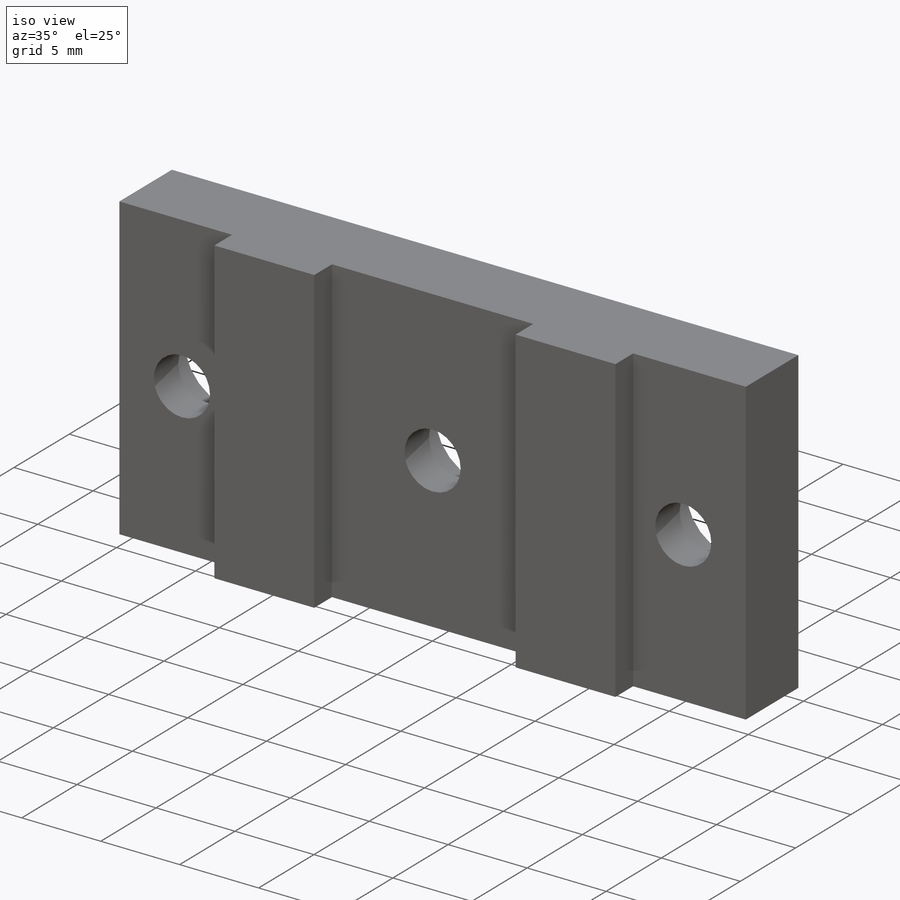
[diagram: iso view]
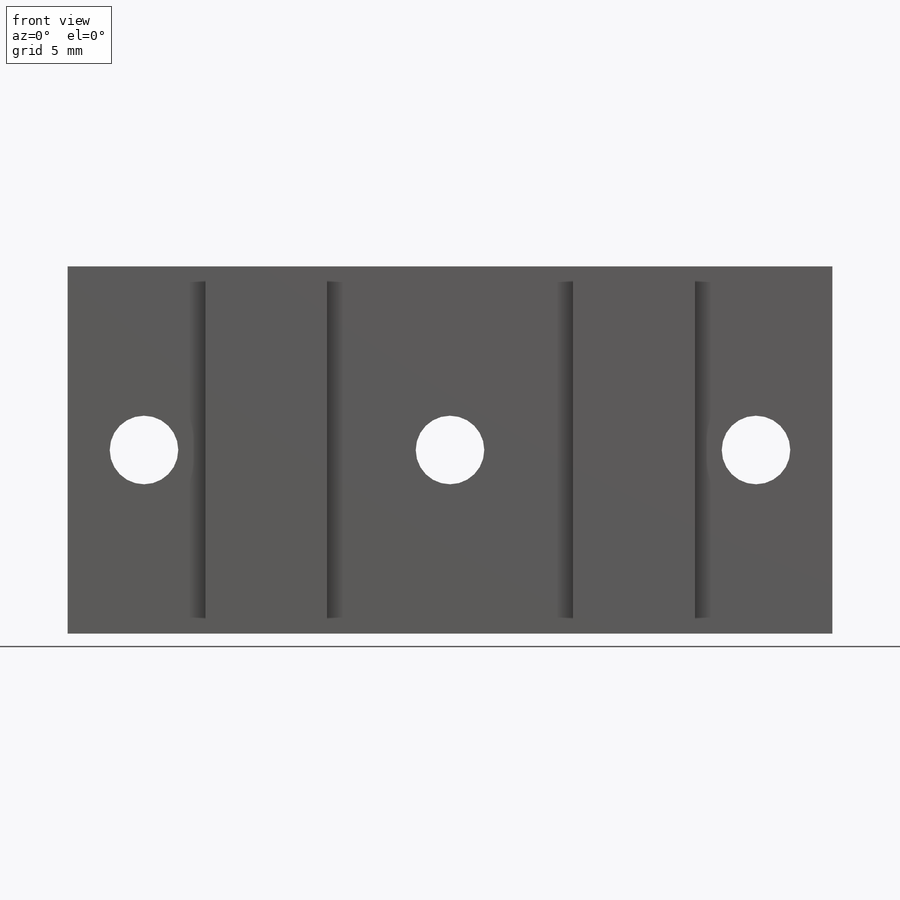
[diagram: front view]
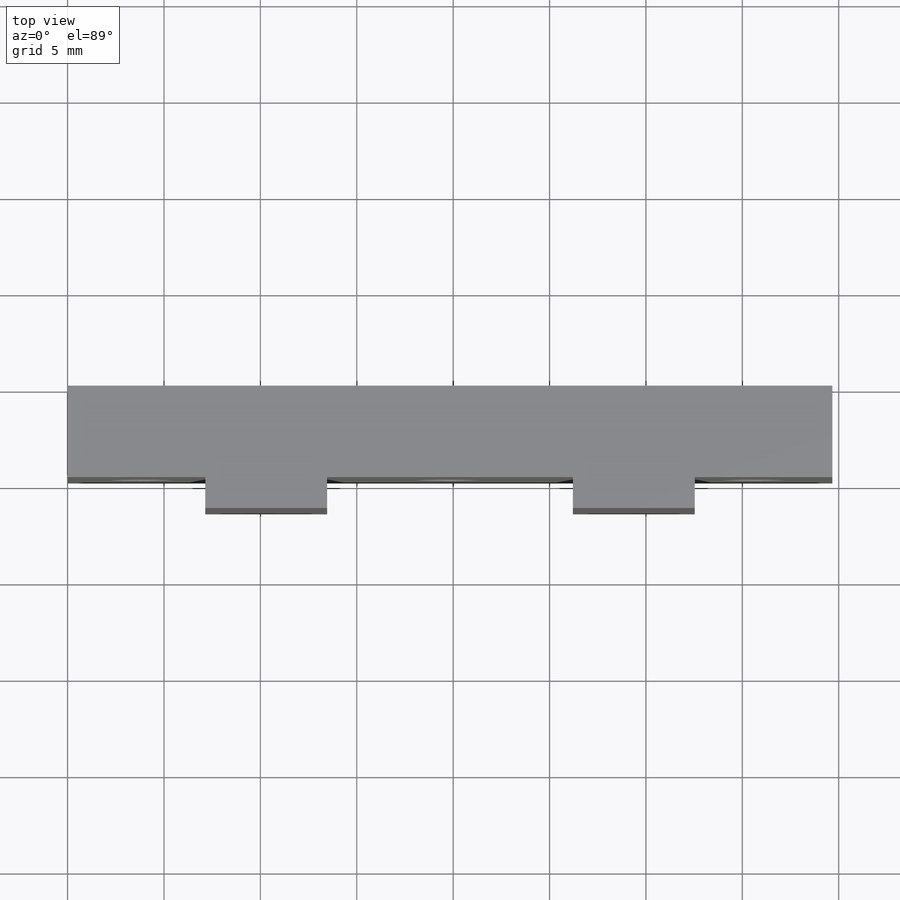
[diagram: top view]
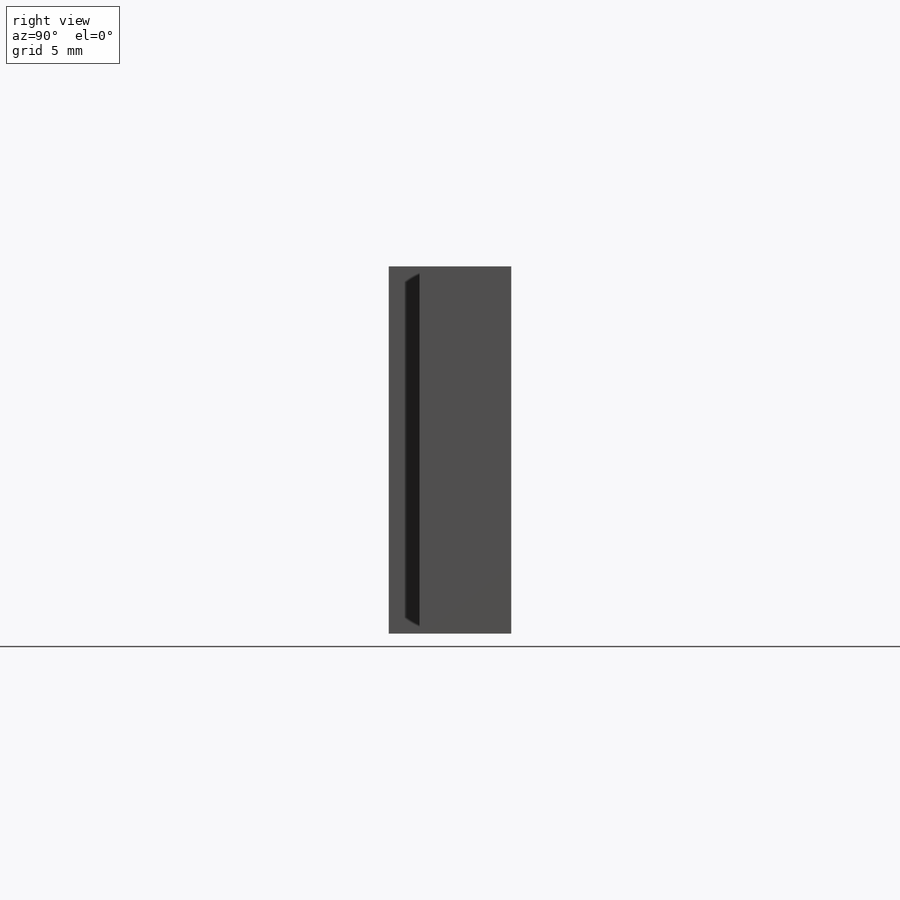
[diagram: right view]
SOLIDWORKS PART (.sldprt)
format: sldprt  version: not decoded by parser v0  size: 179,200 bytes
history: native  units: mm
features: sketch x4, material x1, extrude x1, cut_extrude x1, hole x1 (+11 scaffold rows collapsed)
feature tree (19):
  scaffold x11  (default folders/planes/origin — collapsed)
  material  "Material <not specified>"
  sketch  "Sketch1"  dims[D1=19.05mm D2=39.6748mm]
  extrude  "Extrude1"  Depth=6.35mm
  sketch  "Sketch2"  dims[D1=1.6002mm D2=7.1374mm D3=13.462mm D4=26.2128mm D5=32.5374mm]
  cut_extrude  "Cut-Extrude1"  [1 undecoded]
  hole  "Hole1"  Diameter=3.556mm Depth=6.35mm
  sketch  "Sketch4"  dims[D1=9.525mm D2=3.9624mm D3=15.875mm D4=31.75mm]
  sketch  "Sketch5"  dims[Diameter=3.556mm Depth=6.35mm C-Bore Diameter=6.35mm C-Bore Depth=2.54mm]
decode coverage: 6 of 7 modeling features carry decoded parameters
note: 1 parameter value undecoded
note: suppression state not decoded; provenance and decode notes live in map.json
